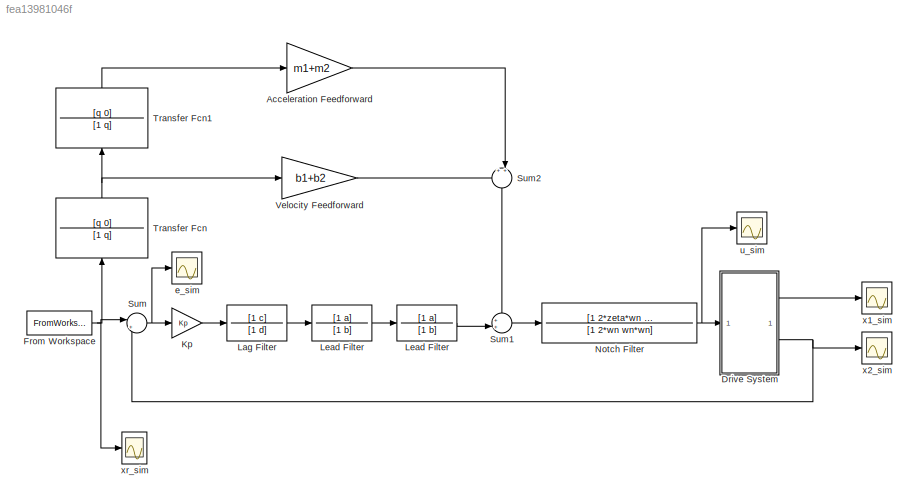
MODEL slx_fea13981046f
KIND model
CONFIG AbsTol = auto
CONFIG EnableMultiTasking = off
CONFIG FixedStep = auto
CONFIG MaxStep = auto
CONFIG MinStep = auto
CONFIG RelTol = 1e-3
CONFIG SampleTimeConstraint = Unconstrained
CONFIG SolverName = VariableStepAuto
CONFIG StartTime = 0.0
CONFIG StopTime = 10.0
BLOCK [Gain] Acceleration Feedforward
  Gain = m1+m2
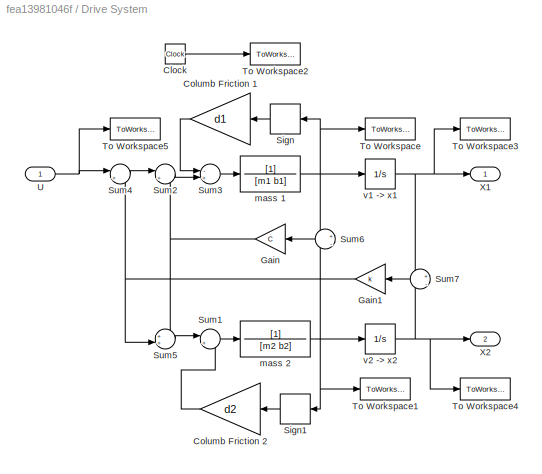
BLOCK [SubSystem] Drive System
BLOCK [Clock] Drive System/Clock
BLOCK [Gain] Drive System/Columb Friction 1
  Gain = d1
  NameLocation = top
BLOCK [Gain] Drive System/Columb Friction 2
  Gain = d2
BLOCK [Gain] Drive System/Gain
  Gain = C
  NameLocation = top
  OutDataTypeStr = Inherit: Same as input
  ParamDataTypeStr = Inherit: Same as input
  SaturateOnIntegerOverflow = on
BLOCK [Gain] Drive System/Gain1
  Gain = k
  NameLocation = top
  OutDataTypeStr = Inherit: Same as input
  ParamDataTypeStr = Inherit: Same as input
  SaturateOnIntegerOverflow = on
BLOCK [Signum] Drive System/Sign
  NameLocation = top
BLOCK [Signum] Drive System/Sign1
  NameLocation = top
BLOCK [Sum] Drive System/Sum1
  Inputs = |+-
  SaturateOnIntegerOverflow = on
BLOCK [Sum] Drive System/Sum2
  Inputs = |+-
  SaturateOnIntegerOverflow = on
BLOCK [Sum] Drive System/Sum3
  Inputs = -+|
  SaturateOnIntegerOverflow = on
BLOCK [Sum] Drive System/Sum4
  Inputs = |+-
  SaturateOnIntegerOverflow = on
BLOCK [Sum] Drive System/Sum5
  Inputs = ++|
  SaturateOnIntegerOverflow = on
BLOCK [Sum] Drive System/Sum6
  Inputs = +|-
  NameLocation = top
  SaturateOnIntegerOverflow = on
BLOCK [Sum] Drive System/Sum7
  Inputs = +|-
  NameLocation = top
  SaturateOnIntegerOverflow = on
BLOCK [ToWorkspace] Drive System/To Workspace
  MaxDataPoints = inf
  SampleTime = -1
  Save2DSignal = 2-D array (concatenate along first dimension)
  VariableName = v1sim
BLOCK [ToWorkspace] Drive System/To Workspace1
  MaxDataPoints = inf
  SampleTime = -1
  Save2DSignal = 2-D array (concatenate along first dimension)
  VariableName = v2sim
BLOCK [ToWorkspace] Drive System/To Workspace2
  MaxDataPoints = inf
  SampleTime = -1
  VariableName = tsim
BLOCK [ToWorkspace] Drive System/To Workspace3
  MaxDataPoints = inf
  SampleTime = -1
  Save2DSignal = 2-D array (concatenate along first dimension)
  VariableName = x1sim
BLOCK [ToWorkspace] Drive System/To Workspace4
  MaxDataPoints = inf
  SampleTime = -1
  Save2DSignal = 2-D array (concatenate along first dimension)
  VariableName = x2sim
BLOCK [ToWorkspace] Drive System/To Workspace5
  MaxDataPoints = inf
  SampleTime = -1
  VariableName = usim
BLOCK [Inport] Drive System/U
BLOCK [Outport] Drive System/X1
BLOCK [Outport] Drive System/X2
  Port = 2
BLOCK [TransferFcn] Drive System/mass 1
  Denominator = [m1 b1]
BLOCK [TransferFcn] Drive System/mass 2
  Denominator = [m2 b2]
  NameLocation = top
BLOCK [Integrator] Drive System/v1 -> x1
BLOCK [Integrator] Drive System/v2 -> x2
BLOCK [FromWorkspace] From Workspace
  VariableName = [t u_exp]
BLOCK [Gain] Kp
  Gain = Kp
BLOCK [TransferFcn] Lag Filter
  Denominator = [1 d]
  Numerator = [1 c]
BLOCK [TransferFcn] Lead Filter
  Denominator = [1 b]
  Numerator = [1 a]
BLOCK [TransferFcn] Lead Filter 
  Denominator = [1 b]
  Numerator = [1 a]
BLOCK [TransferFcn] Notch Filter
  Denominator = [1 2*wn wn*wn]
  Numerator = [1 2*zeta*wn wn*wn]
BLOCK [Sum] Sum
  Inputs = |+-
BLOCK [Sum] Sum1
  Inputs = ++|
BLOCK [Sum] Sum2
  Inputs = ++|
  NameLocation = left
BLOCK [TransferFcn] Transfer Fcn
  Denominator = [1 q]
  NameLocation = right
  Numerator = [q 0]
BLOCK [TransferFcn] Transfer Fcn1
  Denominator = [1 q]
  NameLocation = right
  Numerator = [q 0]
BLOCK [Gain] Velocity Feedforward
  Gain = b1+b2
BLOCK [Scope] e_sim
  DataLogging = on
  DataLoggingSaveFormat = Array
  DataLoggingVariableName = e_sim
  Floating = off
  GraphicalSettings = {"Style":{"BackgroundColor":[0.12941176470588237,0.12941176470588237,0.12941176470588237],"AxesColor":[0.07058823529411765,0.07058823529411765,0.07058823529411765],"LabelsColor":[0.8509803921568627,0.8509803921568627,0.8509803921568627],"PreserveColors":false,"Visible":[true,true,true,true,true,true,true],"LineStyle":["-","-","-","-","-","-","-"],"LineWidth":[1.5,1.5,1.5,1.5,1.5,1.5,1.5],"BarWidth...<+2475ch>
  NumInputPorts = 1
  ScopeFrameLocation = window
  WasSavedAsWebScope = on
  WindowPosition = [488.000000,270.000000,560.000000,420.000000,]
BLOCK [Scope] u_sim
  DataLogging = on
  DataLoggingSaveFormat = Array
  DataLoggingVariableName = u_sim
  Floating = off
  GraphicalSettings = {"Style":{"BackgroundColor":[0.12941176470588237,0.12941176470588237,0.12941176470588237],"AxesColor":[0.07058823529411765,0.07058823529411765,0.07058823529411765],"LabelsColor":[0.8509803921568627,0.8509803921568627,0.8509803921568627],"PreserveColors":false,"Visible":[true,true,true,true,true,true,true],"LineStyle":["-","-","-","-","-","-","-"],"LineWidth":[1.5,1.5,1.5,1.5,1.5,1.5,1.5],"BarWidth...<+2493ch>
  NumInputPorts = 1
  ScopeFrameLocation = window
  WasSavedAsWebScope = on
  WindowPosition = [488.000000,270.000000,560.000000,420.000000,]
BLOCK [Scope] x1_sim
  DataLogging = on
  DataLoggingSaveFormat = Array
  DataLoggingVariableName = x1_sim
  Floating = off
  GraphicalSettings = {"Style":{"BackgroundColor":[0.12941176470588237,0.12941176470588237,0.12941176470588237],"AxesColor":[0.07058823529411765,0.07058823529411765,0.07058823529411765],"LabelsColor":[0.8509803921568627,0.8509803921568627,0.8509803921568627],"PreserveColors":false,"Visible":[true,true,true,true,true,true,true],"LineStyle":["-","-","-","-","-","-","-"],"LineWidth":[1.5,1.5,1.5,1.5,1.5,1.5,1.5],"BarWidth...<+2487ch>
  NumInputPorts = 1
  ScopeFrameLocation = window
  WasSavedAsWebScope = on
  WindowPosition = [488.000000,270.000000,560.000000,420.000000,]
BLOCK [Scope] x2_sim
  DataLogging = on
  DataLoggingSaveFormat = Array
  DataLoggingVariableName = x2_sim
  Floating = off
  GraphicalSettings = {"Style":{"BackgroundColor":[0.12941176470588237,0.12941176470588237,0.12941176470588237],"AxesColor":[0.07058823529411765,0.07058823529411765,0.07058823529411765],"LabelsColor":[0.8509803921568627,0.8509803921568627,0.8509803921568627],"PreserveColors":false,"Visible":[true,true,true,true,true,true,true],"LineStyle":["-","-","-","-","-","-","-"],"LineWidth":[1.5,1.5,1.5,1.5,1.5,1.5,1.5],"BarWidth...<+2487ch>
  NumInputPorts = 1
  ScopeFrameLocation = window
  WasSavedAsWebScope = on
  WindowPosition = [488.000000,270.000000,560.000000,420.000000,]
BLOCK [Scope] xr_sim
  DataLogging = on
  DataLoggingSaveFormat = Array
  DataLoggingVariableName = xr_sim
  Floating = off
  GraphicalSettings = {"Style":{"BackgroundColor":[0.12941176470588237,0.12941176470588237,0.12941176470588237],"AxesColor":[0.07058823529411765,0.07058823529411765,0.07058823529411765],"LabelsColor":[0.8509803921568627,0.8509803921568627,0.8509803921568627],"PreserveColors":false,"Visible":[true,true,true,true,true,true,true],"LineStyle":["-","-","-","-","-","-","-"],"LineWidth":[1.5,1.5,1.5,1.5,1.5,1.5,1.5],"BarWidth...<+2485ch>
  NumInputPorts = 1
  ScopeFrameLocation = window
  WasSavedAsWebScope = on
  WindowPosition = [488.000000,270.000000,560.000000,420.000000,]
LINE Acceleration Feedforward:1 -> Sum2:2
LINE Drive System/Clock:1 -> Drive System/To Workspace2:1
LINE Drive System/Columb Friction 1:1 -> Drive System/Sum3:1
LINE Drive System/Columb Friction 2:1 -> Drive System/Sum1:2
NET Drive System/Gain1:1 -> Drive System/Sum4:2, Drive System/Sum5:2
NET Drive System/Gain:1 -> Drive System/Sum2:2, Drive System/Sum5:1
LINE Drive System/Sign1:1 -> Drive System/Columb Friction 2:1
LINE Drive System/Sign:1 -> Drive System/Columb Friction 1:1
LINE Drive System/Sum1:1 -> Drive System/mass 2:1
LINE Drive System/Sum2:1 -> Drive System/Sum3:2
LINE Drive System/Sum3:1 -> Drive System/mass 1:1
LINE Drive System/Sum4:1 -> Drive System/Sum2:1
LINE Drive System/Sum5:1 -> Drive System/Sum1:1
LINE Drive System/Sum6:1 -> Drive System/Gain:1
LINE Drive System/Sum7:1 -> Drive System/Gain1:1
NET Drive System/U:1 -> Drive System/Sum4:1, Drive System/To Workspace5:1
NET Drive System/mass 1:1 -> Drive System/Sign:1, Drive System/Sum6:1, Drive System/To Workspace:1, Drive System/v1 -> x1:1
NET Drive System/mass 2:1 -> Drive System/Sign1:1, Drive System/Sum6:2, Drive System/To Workspace1:1, Drive System/v2 -> x2:1
NET Drive System/v1 -> x1:1 -> Drive System/Sum7:1, Drive System/To Workspace3:1, Drive System/X1:1
NET Drive System/v2 -> x2:1 -> Drive System/Sum7:2, Drive System/To Workspace4:1, Drive System/X2:1
LINE Drive System:1 -> x1_sim:1
NET Drive System:2 -> Sum:2, x2_sim:1
NET From Workspace:1 -> Sum:1, Transfer Fcn:1, xr_sim:1
LINE Kp:1 -> Lag Filter:1
LINE Lag Filter:1 -> Lead Filter :1
LINE Lead Filter :1 -> Lead Filter:1
LINE Lead Filter:1 -> Sum1:2
NET Notch Filter:1 -> Drive System:1, u_sim:1
LINE Sum1:1 -> Notch Filter:1
LINE Sum2:1 -> Sum1:1
NET Sum:1 -> Kp:1, e_sim:1
LINE Transfer Fcn1:1 -> Acceleration Feedforward:1
NET Transfer Fcn:1 -> Transfer Fcn1:1, Velocity Feedforward:1
LINE Velocity Feedforward:1 -> Sum2:1
note: NET lines group one-source signal fan-out (src -> all destinations, sorted); 1:1 wires keep LINE
